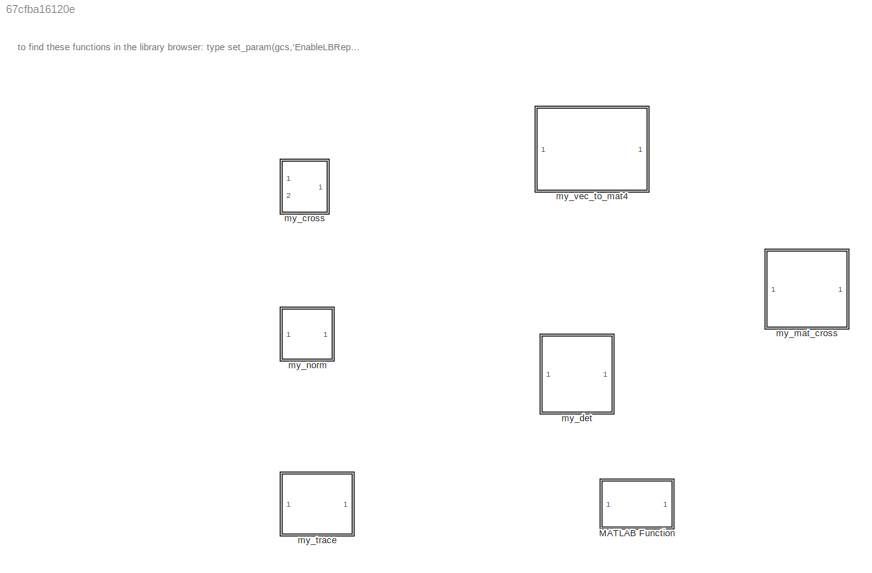
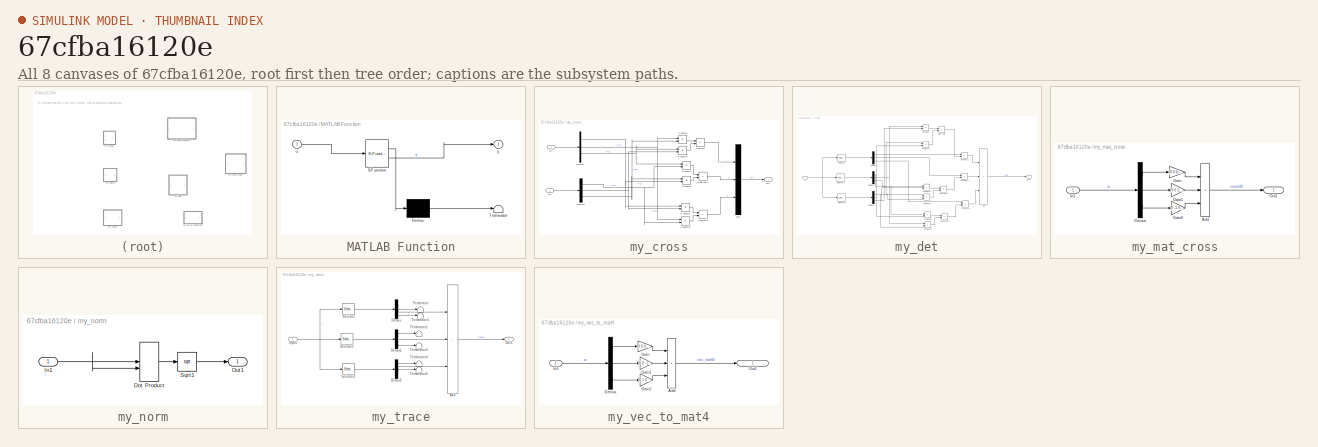
[diagram: thumbnail index - all 8 canvases of the model, root first then tree order]
MODEL slx_67cfba16120e
KIND library
CONFIG AbsTol = auto
CONFIG EnableMultiTasking = off
CONFIG FixedStep = auto
CONFIG MaxStep = auto
CONFIG MinStep = auto
CONFIG RelTol = 1e-3
CONFIG SampleTimeConstraint = Unconstrained
CONFIG SolverName = VariableStepAuto
CONFIG StartTime = 0.0
CONFIG StopTime = 10.0
BLOCK [SubSystem] MATLAB Function
  ErrorFcn = Stateflow.Translate.translate
  PermitHierarchicalResolution = ExplicitOnly
  Ports = [1, 1]
  RequestExecContextInheritance = off
  SFBlockType = MATLAB Function
  TreatAsAtomicUnit = on
BLOCK [Demux] MATLAB Function/ Demux 
  Outputs = 1
  Ports = [1, 1]
BLOCK [S-Function] MATLAB Function/ SFunction 
  EnableBusSupport = off
  FunctionName = sf_sfun
  PortCounts = [1 2]
  Ports = [1, 2]
  SFcnIsStateOwnerBlock = off
  SFunctionDeploymentMode = off
  Tag = Stateflow S-Function 2
BLOCK [Terminator] MATLAB Function/ Terminator 
BLOCK [Inport] MATLAB Function/u
BLOCK [Outport] MATLAB Function/y
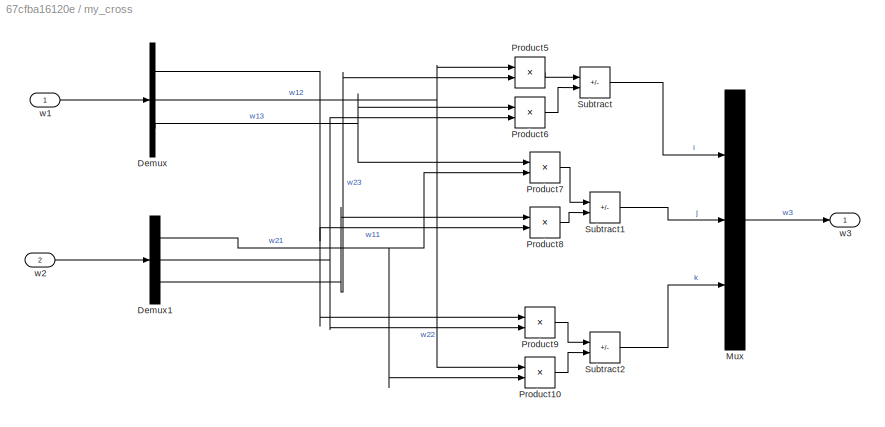
BLOCK [SubSystem] my_cross
  Ports = [2, 1]
  RequestExecContextInheritance = off
BLOCK [Demux] my_cross/Demux
  Outputs = 3
  Ports = [1, 3]
BLOCK [Demux] my_cross/Demux1
  Outputs = 3
  Ports = [1, 3]
BLOCK [Mux] my_cross/Mux
  DisplayOption = bar
  Inputs = 3
  Ports = [3, 1]
BLOCK [Product] my_cross/Product10
  Ports = [2, 1]
BLOCK [Product] my_cross/Product5
  Ports = [2, 1]
BLOCK [Product] my_cross/Product6
  Ports = [2, 1]
BLOCK [Product] my_cross/Product7
  Ports = [2, 1]
BLOCK [Product] my_cross/Product8
  Ports = [2, 1]
BLOCK [Product] my_cross/Product9
  Ports = [2, 1]
BLOCK [Sum] my_cross/Subtract
  IconShape = rectangular
  Inputs = +-
  Ports = [2, 1]
BLOCK [Sum] my_cross/Subtract1
  IconShape = rectangular
  Inputs = +-
  Ports = [2, 1]
BLOCK [Sum] my_cross/Subtract2
  IconShape = rectangular
  Inputs = +-
  Ports = [2, 1]
BLOCK [Inport] my_cross/w1
BLOCK [Inport] my_cross/w2
  Port = 2
BLOCK [Outport] my_cross/w3
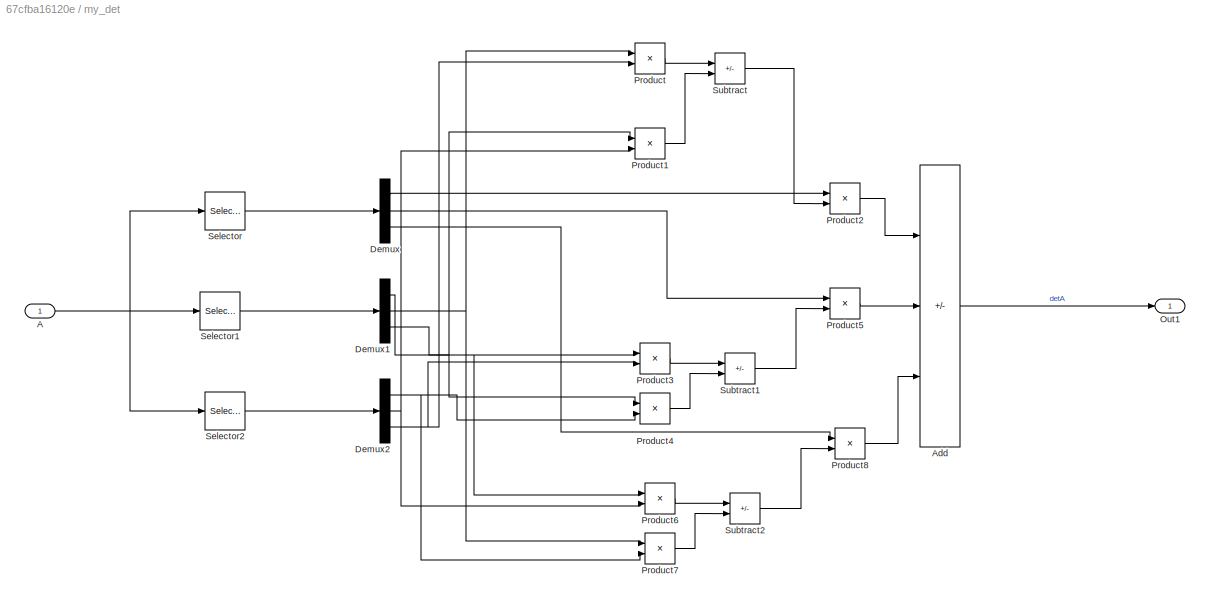
BLOCK [SubSystem] my_det
  Ports = [1, 1]
  RequestExecContextInheritance = off
BLOCK [Inport] my_det/A
BLOCK [Sum] my_det/Add
  IconShape = rectangular
  Inputs = +-+
  Ports = [3, 1]
BLOCK [Demux] my_det/Demux
  Outputs = 3
  Ports = [1, 3]
BLOCK [Demux] my_det/Demux1
  Outputs = 3
  Ports = [1, 3]
BLOCK [Demux] my_det/Demux2
  Outputs = 3
  Ports = [1, 3]
BLOCK [Outport] my_det/Out1
  IconDisplay = Signal name
BLOCK [Product] my_det/Product
  Ports = [2, 1]
BLOCK [Product] my_det/Product1
  Ports = [2, 1]
BLOCK [Product] my_det/Product2
  Ports = [2, 1]
BLOCK [Product] my_det/Product3
  Ports = [2, 1]
BLOCK [Product] my_det/Product4
  Ports = [2, 1]
BLOCK [Product] my_det/Product5
  Ports = [2, 1]
BLOCK [Product] my_det/Product6
  Ports = [2, 1]
BLOCK [Product] my_det/Product7
  Ports = [2, 1]
BLOCK [Product] my_det/Product8
  Ports = [2, 1]
BLOCK [Selector] my_det/Selector
  IndexOptions = Index vector (dialog),Select all
  Indices = 1,1
  InputPortWidth = 3
  NumberOfDimensions = 2
  OutputSizes = 1,1
  Ports = [1, 1]
BLOCK [Selector] my_det/Selector1
  IndexOptions = Index vector (dialog),Select all
  Indices = 2,1
  InputPortWidth = 3
  NumberOfDimensions = 2
  OutputSizes = 1,1
  Ports = [1, 1]
BLOCK [Selector] my_det/Selector2
  IndexOptions = Index vector (dialog),Select all
  Indices = 3,1
  InputPortWidth = 3
  NumberOfDimensions = 2
  OutputSizes = 1,1
  Ports = [1, 1]
BLOCK [Sum] my_det/Subtract
  IconShape = rectangular
  Inputs = +-
  Ports = [2, 1]
BLOCK [Sum] my_det/Subtract1
  IconShape = rectangular
  Inputs = +-
  Ports = [2, 1]
BLOCK [Sum] my_det/Subtract2
  IconShape = rectangular
  Inputs = +-
  Ports = [2, 1]
BLOCK [SubSystem] my_mat_cross
  Ports = [1, 1]
  RequestExecContextInheritance = off
BLOCK [Sum] my_mat_cross/Add
  IconShape = rectangular
  Inputs = +++
  Ports = [3, 1]
BLOCK [Demux] my_mat_cross/Demux
  Outputs = 3
  Ports = [1, 3]
BLOCK [Gain] my_mat_cross/Gain
  Gain = [0 0 0; 0 0 -1; 0 1 0]
BLOCK [Gain] my_mat_cross/Gain1
  Gain = [0 0 1; 0 0 0; -1 0 0]
BLOCK [Gain] my_mat_cross/Gain2
  Gain = [0 -1 0; 1 0 0; 0 0 0]
BLOCK [Inport] my_mat_cross/In1
  IconDisplay = Signal name
BLOCK [Outport] my_mat_cross/Out1
  IconDisplay = Signal name
BLOCK [SubSystem] my_norm
  Ports = [1, 1]
  RequestExecContextInheritance = off
BLOCK [DotProduct] my_norm/Dot Product
  OutDataTypeStr = Inherit: Inherit via internal rule
BLOCK [Inport] my_norm/In1
BLOCK [Outport] my_norm/Out1
BLOCK [Sqrt] my_norm/Sqrt1
BLOCK [SubSystem] my_trace
  Ports = [1, 1]
  RequestExecContextInheritance = off
BLOCK [Sum] my_trace/Add
  IconShape = rectangular
  Inputs = +++
  Ports = [3, 1]
BLOCK [Demux] my_trace/Demux
  Outputs = 3
  Ports = [1, 3]
BLOCK [Demux] my_trace/Demux1
  Outputs = 3
  Ports = [1, 3]
BLOCK [Demux] my_trace/Demux2
  Outputs = 3
  Ports = [1, 3]
BLOCK [Inport] my_trace/Input
  IconDisplay = Signal name
BLOCK [Outport] my_trace/Out1
  IconDisplay = Signal name
BLOCK [Selector] my_trace/Selector
  IndexOptions = Index vector (dialog),Select all
  Indices = 1,1
  InputPortWidth = 3
  NumberOfDimensions = 2
  OutputSizes = 1,1
  Ports = [1, 1]
BLOCK [Selector] my_trace/Selector1
  IndexOptions = Index vector (dialog),Select all
  Indices = 2,1
  InputPortWidth = 3
  NumberOfDimensions = 2
  OutputSizes = 1,1
  Ports = [1, 1]
BLOCK [Selector] my_trace/Selector2
  IndexOptions = Index vector (dialog),Select all
  Indices = 3,1
  InputPortWidth = 3
  NumberOfDimensions = 2
  OutputSizes = 1,1
  Ports = [1, 1]
BLOCK [Terminator] my_trace/Terminator
BLOCK [Terminator] my_trace/Terminator1
BLOCK [Terminator] my_trace/Terminator2
BLOCK [Terminator] my_trace/Terminator3
BLOCK [Terminator] my_trace/Terminator4
BLOCK [Terminator] my_trace/Terminator5
BLOCK [SubSystem] my_vec_to_mat4
  Ports = [1, 1]
  RequestExecContextInheritance = off
BLOCK [Sum] my_vec_to_mat4/Add
  IconShape = rectangular
  Inputs = +++
  Ports = [3, 1]
BLOCK [Demux] my_vec_to_mat4/Demux
  Outputs = 3
  Ports = [1, 3]
BLOCK [Gain] my_vec_to_mat4/Gain
  Gain = [0 0 0 0; 0 0 1 0; 0 -1 0 0; -1 0 0 0]
BLOCK [Gain] my_vec_to_mat4/Gain1
  Gain = [0 0 -1 0; 0 0 0 1; 1 0 0 0; 0 -1 0 0]
BLOCK [Gain] my_vec_to_mat4/Gain2
  Gain = [0 1 0 0; -1 0 0 0; 0 0 0 1; 0 0 -1 0]
BLOCK [Inport] my_vec_to_mat4/In1
  IconDisplay = Signal name
BLOCK [Outport] my_vec_to_mat4/Out1
  IconDisplay = Signal name
ANNOTATION (root): to find these functions in the library browser: type set_param(gcs,'EnableLBRepository','on'); in the command window having in path this library
NET my_cross/Demux1:1 -> my_cross/Product10:2, my_cross/Product7:2
NET my_cross/Demux1:2 -> my_cross/Product6:2, my_cross/Product9:2
NET my_cross/Demux1:3 -> my_cross/Product5:2, my_cross/Product8:1
NET my_cross/Demux:1 -> my_cross/Product8:2, my_cross/Product9:1
NET my_cross/Demux:2 -> my_cross/Product10:1, my_cross/Product5:1
NET my_cross/Demux:3 -> my_cross/Product6:1, my_cross/Product7:1
LINE my_cross/Mux:1 -> my_cross/w3:1
LINE my_cross/Product10:1 -> my_cross/Subtract2:2
LINE my_cross/Product5:1 -> my_cross/Subtract:1
LINE my_cross/Product6:1 -> my_cross/Subtract:2
LINE my_cross/Product7:1 -> my_cross/Subtract1:1
LINE my_cross/Product8:1 -> my_cross/Subtract1:2
LINE my_cross/Product9:1 -> my_cross/Subtract2:1
LINE my_cross/Subtract1:1 -> my_cross/Mux:2
LINE my_cross/Subtract2:1 -> my_cross/Mux:3
LINE my_cross/Subtract:1 -> my_cross/Mux:1
LINE my_cross/w1:1 -> my_cross/Demux:1
LINE my_cross/w2:1 -> my_cross/Demux1:1
NET my_det/A:1 -> my_det/Selector1:1, my_det/Selector2:1, my_det/Selector:1
LINE my_det/Add:1 -> my_det/Out1:1
NET my_det/Demux1:1 -> my_det/Product3:1, my_det/Product6:1
NET my_det/Demux1:2 -> my_det/Product7:1, my_det/Product:1
NET my_det/Demux1:3 -> my_det/Product1:1, my_det/Product4:1
NET my_det/Demux2:1 -> my_det/Product4:2, my_det/Product7:2
NET my_det/Demux2:2 -> my_det/Product1:2, my_det/Product6:2
NET my_det/Demux2:3 -> my_det/Product3:2, my_det/Product:2
LINE my_det/Demux:1 -> my_det/Product2:1
LINE my_det/Demux:2 -> my_det/Product5:1
LINE my_det/Demux:3 -> my_det/Product8:1
LINE my_det/Product1:1 -> my_det/Subtract:2
LINE my_det/Product2:1 -> my_det/Add:1
LINE my_det/Product3:1 -> my_det/Subtract1:1
LINE my_det/Product4:1 -> my_det/Subtract1:2
LINE my_det/Product5:1 -> my_det/Add:2
LINE my_det/Product6:1 -> my_det/Subtract2:1
LINE my_det/Product7:1 -> my_det/Subtract2:2
LINE my_det/Product8:1 -> my_det/Add:3
LINE my_det/Product:1 -> my_det/Subtract:1
LINE my_det/Selector1:1 -> my_det/Demux1:1
LINE my_det/Selector2:1 -> my_det/Demux2:1
LINE my_det/Selector:1 -> my_det/Demux:1
LINE my_det/Subtract1:1 -> my_det/Product5:2
LINE my_det/Subtract2:1 -> my_det/Product8:2
LINE my_det/Subtract:1 -> my_det/Product2:2
LINE my_mat_cross/Add:1 -> my_mat_cross/Out1:1
LINE my_mat_cross/Demux:1 -> my_mat_cross/Gain:1
LINE my_mat_cross/Demux:2 -> my_mat_cross/Gain1:1
LINE my_mat_cross/Demux:3 -> my_mat_cross/Gain2:1
LINE my_mat_cross/Gain1:1 -> my_mat_cross/Add:2
LINE my_mat_cross/Gain2:1 -> my_mat_cross/Add:3
LINE my_mat_cross/Gain:1 -> my_mat_cross/Add:1
LINE my_mat_cross/In1:1 -> my_mat_cross/Demux:1
LINE my_norm/Dot Product:1 -> my_norm/Sqrt1:1
NET my_norm/In1:1 -> my_norm/Dot Product:1, my_norm/Dot Product:2
LINE my_norm/Sqrt1:1 -> my_norm/Out1:1
LINE my_trace/Add:1 -> my_trace/Out1:1
LINE my_trace/Demux1:1 -> my_trace/Terminator2:1
LINE my_trace/Demux1:2 -> my_trace/Add:2
LINE my_trace/Demux1:3 -> my_trace/Terminator3:1
LINE my_trace/Demux2:1 -> my_trace/Terminator4:1
LINE my_trace/Demux2:2 -> my_trace/Terminator5:1
LINE my_trace/Demux2:3 -> my_trace/Add:3
LINE my_trace/Demux:1 -> my_trace/Add:1
LINE my_trace/Demux:2 -> my_trace/Terminator:1
LINE my_trace/Demux:3 -> my_trace/Terminator1:1
NET my_trace/Input:1 -> my_trace/Selector1:1, my_trace/Selector2:1, my_trace/Selector:1
LINE my_trace/Selector1:1 -> my_trace/Demux1:1
LINE my_trace/Selector2:1 -> my_trace/Demux2:1
LINE my_trace/Selector:1 -> my_trace/Demux:1
LINE my_vec_to_mat4/Add:1 -> my_vec_to_mat4/Out1:1
LINE my_vec_to_mat4/Demux:1 -> my_vec_to_mat4/Gain:1
LINE my_vec_to_mat4/Demux:2 -> my_vec_to_mat4/Gain1:1
LINE my_vec_to_mat4/Demux:3 -> my_vec_to_mat4/Gain2:1
LINE my_vec_to_mat4/Gain1:1 -> my_vec_to_mat4/Add:2
LINE my_vec_to_mat4/Gain2:1 -> my_vec_to_mat4/Add:3
LINE my_vec_to_mat4/Gain:1 -> my_vec_to_mat4/Add:1
LINE my_vec_to_mat4/In1:1 -> my_vec_to_mat4/Demux:1
note: NET lines group one-source signal fan-out (src -> all destinations, sorted); 1:1 wires keep LINE
CHART MATLAB Function states=1 transitions=1
  STATE_LABEL 'eML_blk_kernel()'
  STATE_LABEL 'SCRIPT:\nfunction y = from0to360(u)\nwhile u>360\n    u=u-360;\nend\nwhile u<0\n    u=u+360;\nend\ny = u;\n'
CHART  states=0 transitions=0
